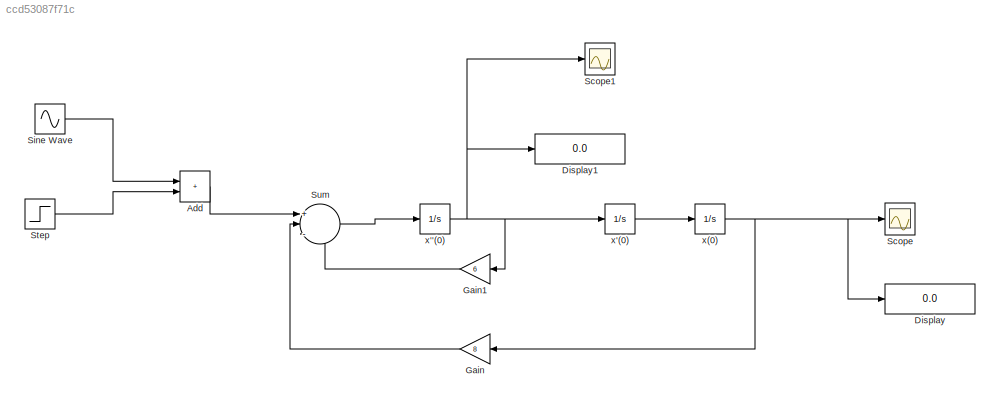
MODEL slx_ccd53087f71c
KIND model
CONFIG AbsTol = auto
CONFIG EnableMultiTasking = off
CONFIG FixedStep = auto
CONFIG MaxStep = auto
CONFIG MinStep = auto
CONFIG RelTol = 1e-3
CONFIG SampleTimeConstraint = Unconstrained
CONFIG SolverName = VariableStepAuto
CONFIG StartTime = 0.0
CONFIG StopTime = 4.8
BLOCK [Sum] Add
  IconShape = rectangular
BLOCK [Display] Display
  Decimation = 1
BLOCK [Display] Display1
  Decimation = 1
BLOCK [Gain] Gain
  Gain = 8
BLOCK [Gain] Gain1
  Gain = 6
BLOCK [Scope] Scope
  Floating = off
  NumInputPorts = 1
  ScopeSpecificationString = Simulink.scopes.TimeScopeBlockCfg('CurrentConfiguration', extmgr.ConfigurationSet(extmgr.Configuration('Core','General UI',true),extmgr.Configuration('Core','Source UI',true),extmgr.Configuration('Sources','WiredSimulink',true),extmgr.Configuration('Visuals','Time Domain',true,'SerializedDisplays',{struct('MinYLimReal','-0.04861','MaxYLimReal','1.18096','YLabelReal','','MinYLimMag','0.00000','MaxY...<+1379ch>
BLOCK [Scope] Scope1
  Floating = off
  NumInputPorts = 1
  ScopeSpecificationString = Simulink.scopes.TimeScopeBlockCfg('CurrentConfiguration', extmgr.ConfigurationSet(extmgr.Configuration('Core','General UI',true),extmgr.Configuration('Core','Source UI',true),extmgr.Configuration('Sources','WiredSimulink',true,'DataLoggingVariableName','ScopeData1'),extmgr.Configuration('Visuals','Time Domain',true,'SerializedDisplays',{struct('MinYLimReal','-0.04861','MaxYLimReal','1.18096','YLab...<+1418ch>
BLOCK [Sin] Sine Wave
  Amplitude = 2
  Frequency = pi/4
  SampleTime = 0
BLOCK [Step] Step
  After = 10
  SampleTime = 0
  Time = 0
BLOCK [Sum] Sum
  Inputs = +|-|-
BLOCK [Integrator] x''(0)
  InitialCondition = 1.8
BLOCK [Integrator] x'(0)
BLOCK [Integrator] x(0)
LINE Add:1 -> Sum:1
LINE Gain1:1 -> Sum:3
LINE Gain:1 -> Sum:2
LINE Sine Wave:1 -> Add:1
LINE Step:1 -> Add:2
LINE Sum:1 -> x''(0):1
NET x''(0):1 -> Display1:1, Gain1:1, Scope1:1, x'(0):1
LINE x'(0):1 -> x(0):1
NET x(0):1 -> Display:1, Gain:1, Scope:1
note: NET lines group one-source signal fan-out (src -> all destinations, sorted); 1:1 wires keep LINE
